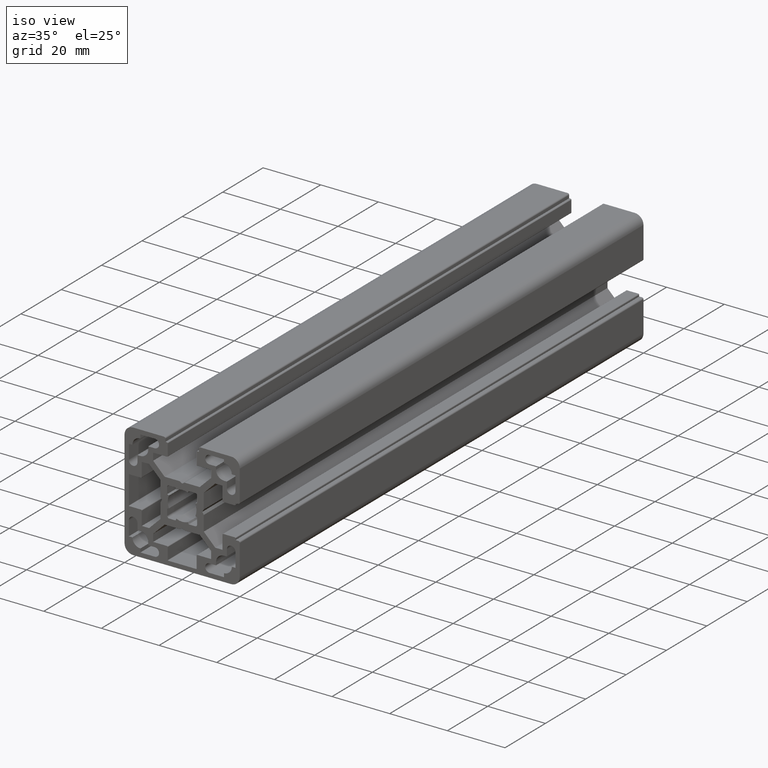
[diagram: clean part render]
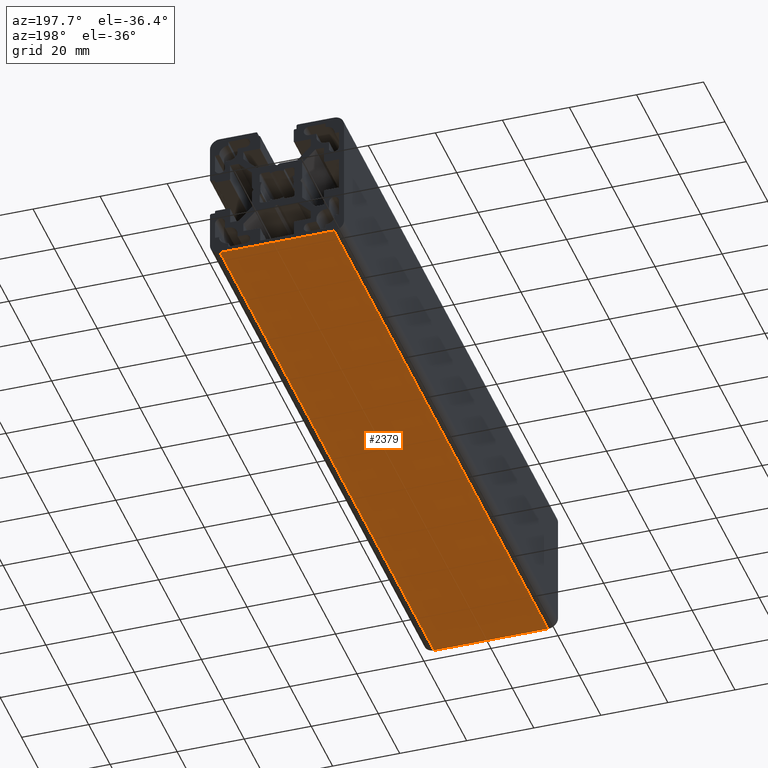
[diagram: tour spotlight — one face highlighted and labeled with its STEP entity id]
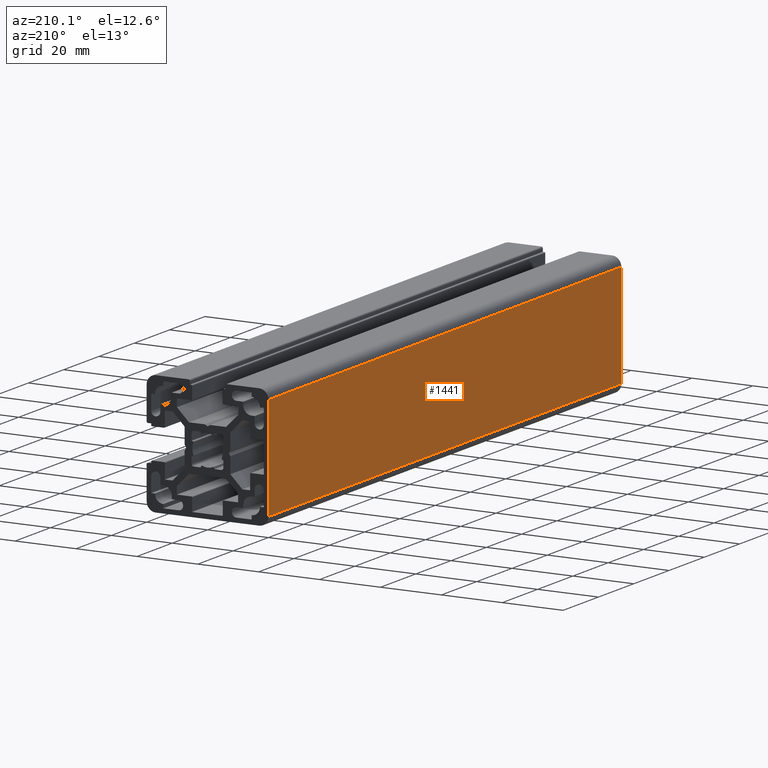
[diagram: tour spotlight — one face highlighted and labeled with its STEP entity id]
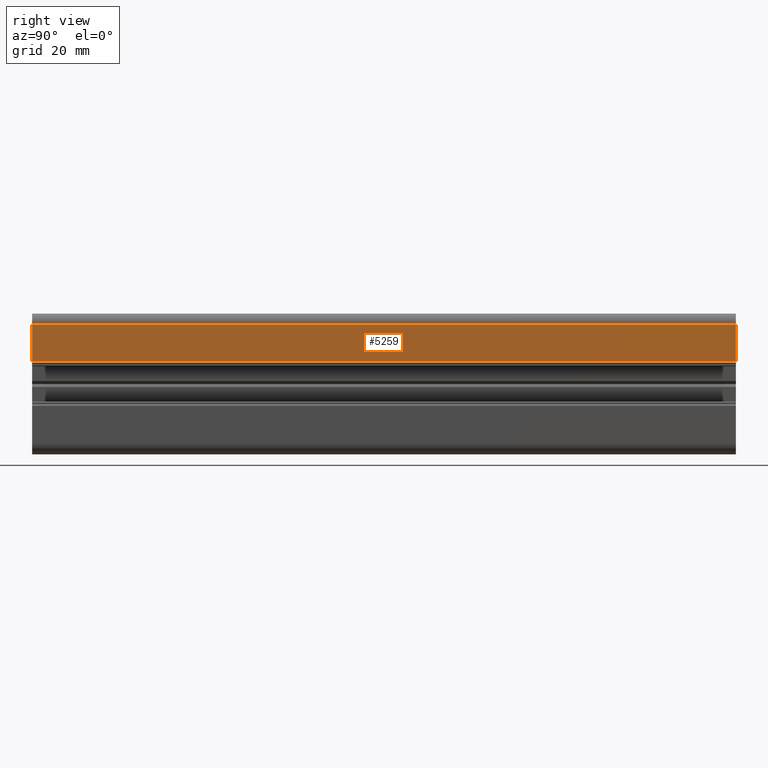
[diagram: tour spotlight — one face highlighted and labeled with its STEP entity id]
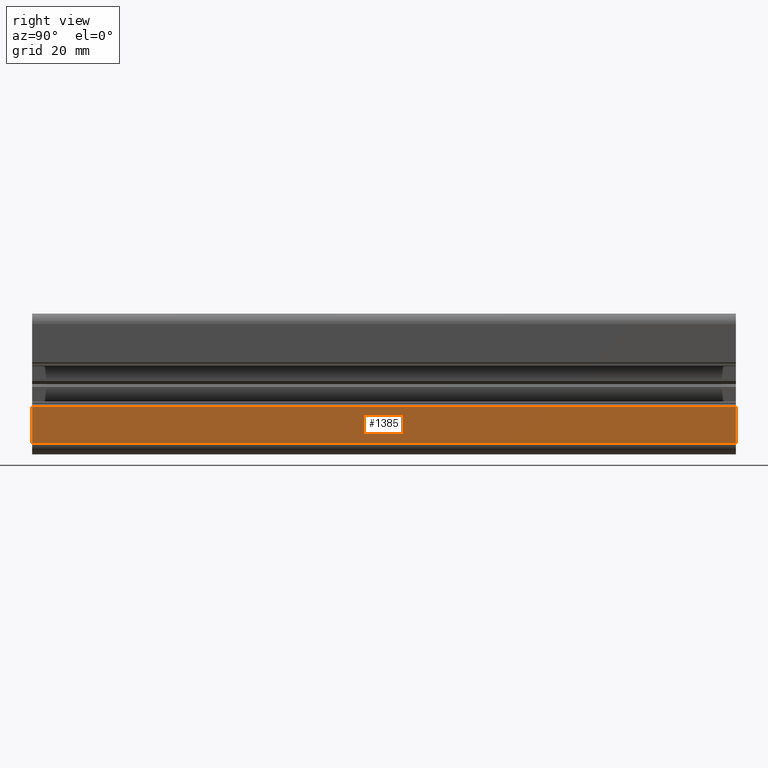
[diagram: tour spotlight — one face highlighted and labeled with its STEP entity id]
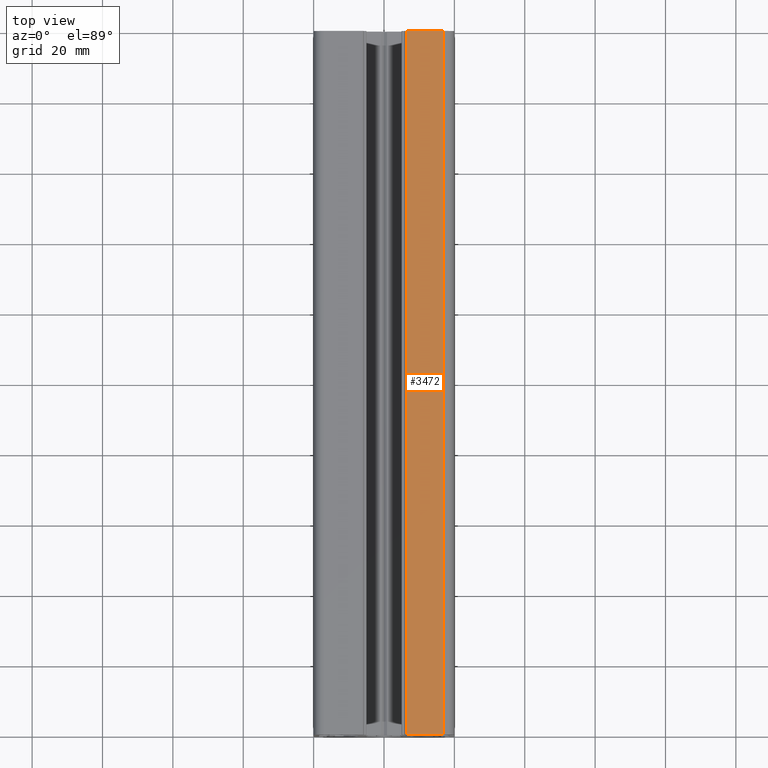
[diagram: tour spotlight — one face highlighted and labeled with its STEP entity id]
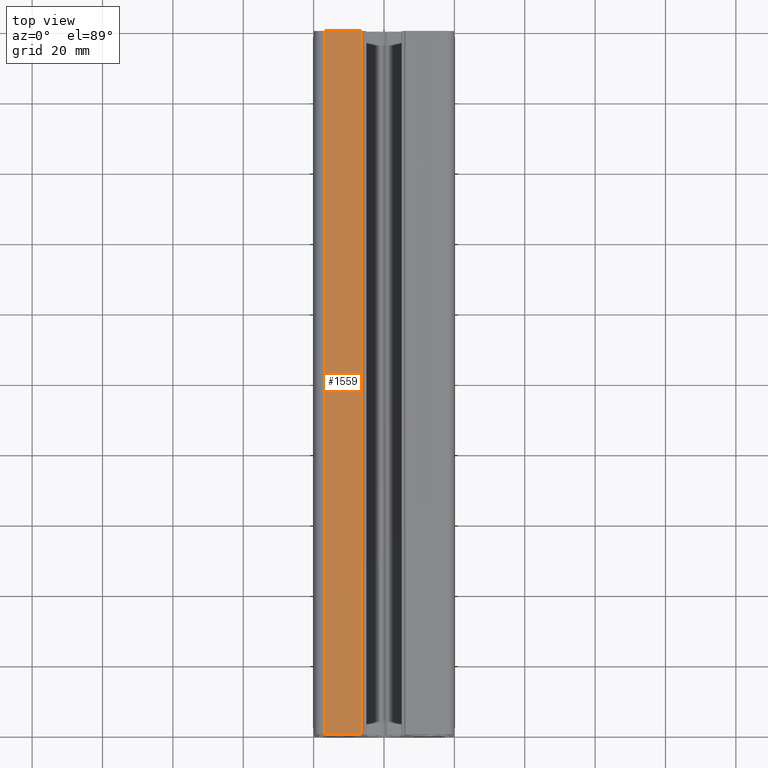
[diagram: tour spotlight — one face highlighted and labeled with its STEP entity id]
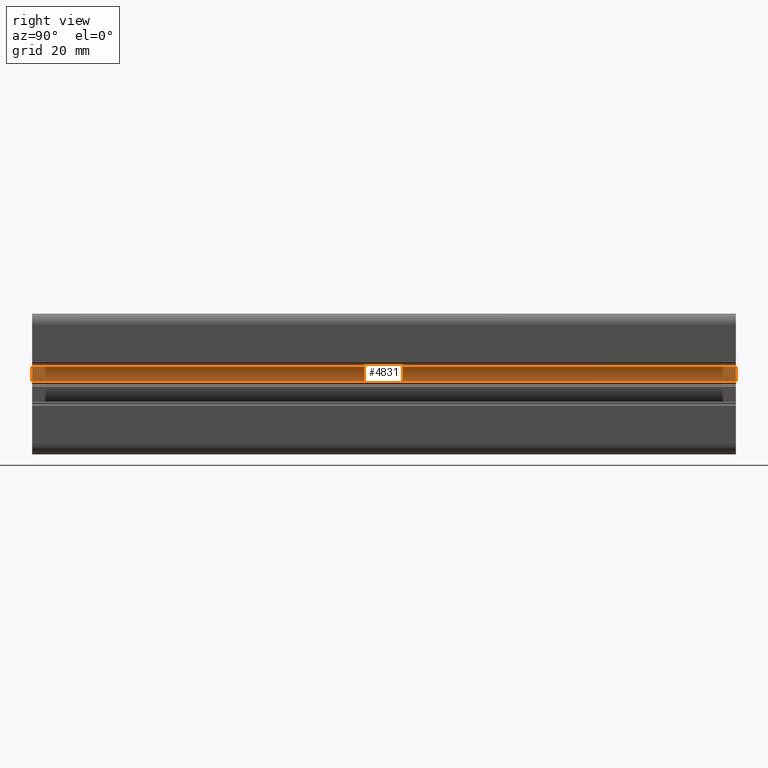
[diagram: tour spotlight — one face highlighted and labeled with its STEP entity id]
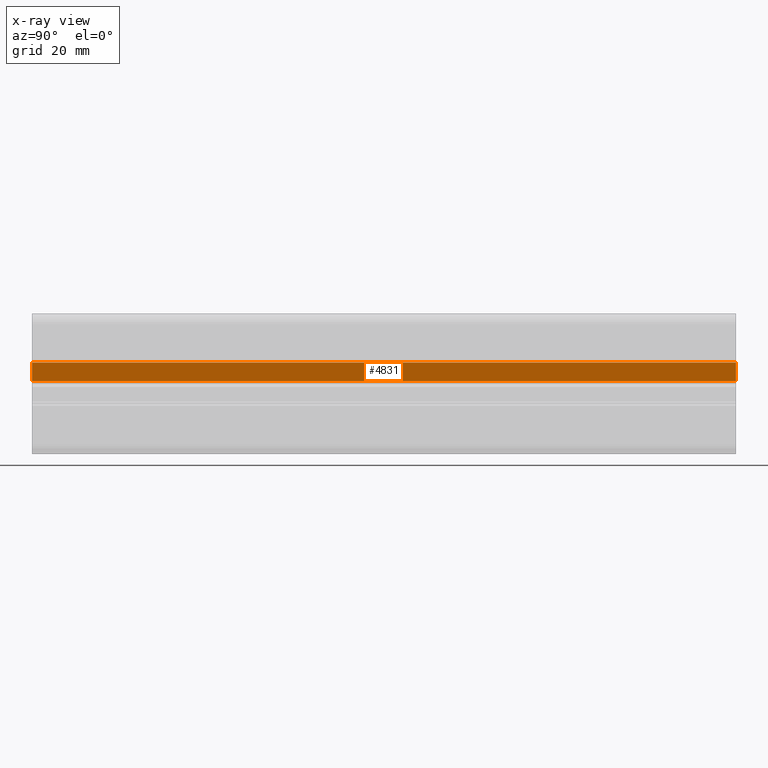
[diagram: x-ray of the same camera — body ghosted, this tour face saturated]
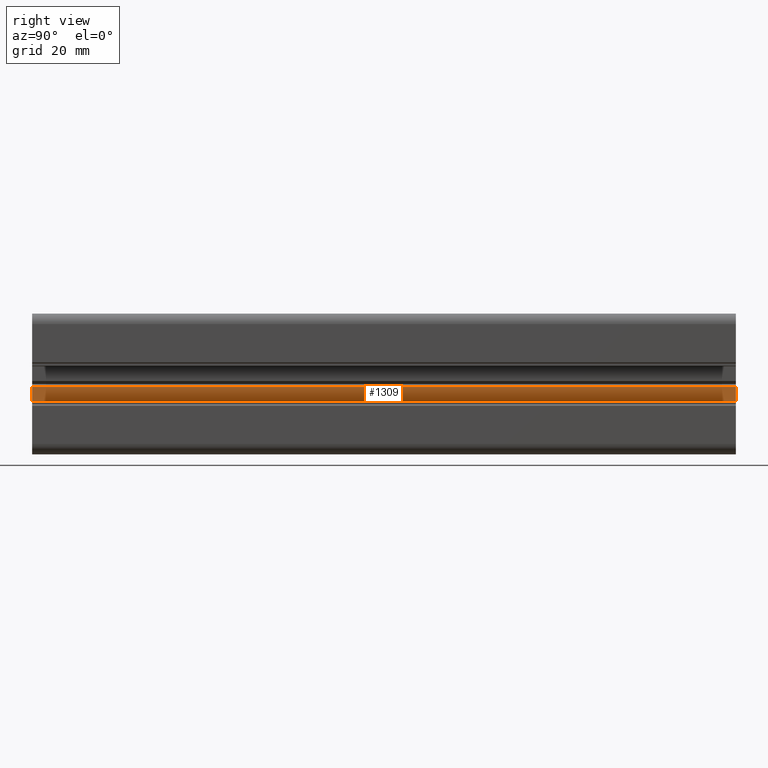
[diagram: tour spotlight — one face highlighted and labeled with its STEP entity id]
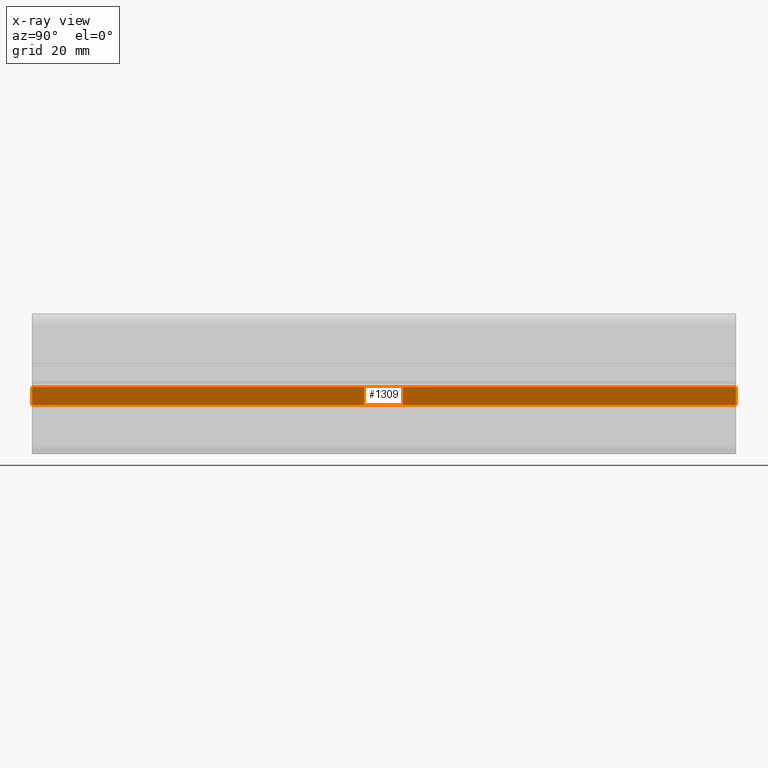
[diagram: x-ray of the same camera — body ghosted, this tour face saturated]
A machine part: a face-by-face anatomy tour. The part has 165 B-rep faces; the first image is the clean iso view, then the 8 largest visible faces are spotlighted one at a time (largest first), each with its STEP entity span.

Face 1 — auxiliary view, entity #2379. In plain terms, the highlighted planar face has unit normal (-0, 0, -1).
Definition (entity closure, byte-faithful):
#91 = DIRECTION ( 'NONE',  ( -0.0000000000000000000, -1.000000000000000000, -0.0000000000000000000 ) ) ;
#104 = VECTOR ( 'NONE', #2369, 1000.000000000000000 ) ;
#146 = CARTESIAN_POINT ( 'NONE',  ( -16.99999999999900200, 0.0000000000000000000, -20.00000000000049000 ) ) ;
#182 = EDGE_CURVE ( 'NONE', #4038, #1059, #1040, .T. ) ;
#447 = CARTESIAN_POINT ( 'NONE',  ( 17.00000000000020300, 200.0000000000000000, -20.00000000000050100 ) ) ;
#455 = VECTOR ( 'NONE', #4737, 1000.000000000000000 ) ;
#646 = EDGE_CURVE ( 'NONE', #1059, #5116, #5097, .T. ) ;
#998 = ORIENTED_EDGE ( 'NONE', *, *, #2866, .T. ) ;
#1040 = LINE ( 'NONE', #4922, #104 ) ;
#1059 = VERTEX_POINT ( 'NONE', #447 ) ;
#1343 = PLANE ( 'NONE',  #4647 ) ;
#1537 = ORIENTED_EDGE ( 'NONE', *, *, #5379, .T. ) ;
#2097 = CARTESIAN_POINT ( 'NONE',  ( 17.00000000000040100, 0.0000000000000000000, -20.00000000000050100 ) ) ;
#2199 = DIRECTION ( 'NONE',  ( 0.0000000000000000000, 1.000000000000000000, 0.0000000000000000000 ) ) ;
#2239 = LINE ( 'NONE', #5241, #3254 ) ;
#2369 = DIRECTION ( 'NONE',  ( 1.000000000000000000, -0.0000000000000000000, -2.612289469706300100E-016 ) ) ;
#2379 = ADVANCED_FACE ( 'NONE', ( #5427 ), #1343, .T. ) ;
#2637 = DIRECTION ( 'NONE',  ( -2.612289469706300100E-016, 0.0000000000000000000, -1.000000000000000000 ) ) ;
#2691 = CARTESIAN_POINT ( 'NONE',  ( -16.99999999999900200, 200.0000000000000000, -20.00000000000049000 ) ) ;
#2738 = EDGE_LOOP ( 'NONE', ( #1537, #998, #3465, #4925 ) ) ;
#2838 = LINE ( 'NONE', #2097, #455 ) ;
#2866 = EDGE_CURVE ( 'NONE', #5052, #4038, #2239, .T. ) ;
#3254 = VECTOR ( 'NONE', #2199, 1000.000000000000000 ) ;
#3465 = ORIENTED_EDGE ( 'NONE', *, *, #182, .T. ) ;
#4038 = VERTEX_POINT ( 'NONE', #2691 ) ;
#4358 = CARTESIAN_POINT ( 'NONE',  ( 17.00000000000040100, 0.0000000000000000000, -20.00000000000050100 ) ) ;
#4477 = CARTESIAN_POINT ( 'NONE',  ( 17.00000000000040100, 0.0000000000000000000, -20.00000000000050100 ) ) ;
#4479 = CARTESIAN_POINT ( 'NONE',  ( 17.00000000000020300, 0.0000000000000000000, -20.00000000000050100 ) ) ;
#4647 = AXIS2_PLACEMENT_3D ( 'NONE', #4358, #2637, #4842 ) ;
#4737 = DIRECTION ( 'NONE',  ( -1.000000000000000000, 0.0000000000000000000, 2.612289469706300100E-016 ) ) ;
#4842 = DIRECTION ( 'NONE',  ( -1.000000000000000000, 0.0000000000000000000, 2.612289469706300100E-016 ) ) ;
#4922 = CARTESIAN_POINT ( 'NONE',  ( 17.00000000000040100, 200.0000000000000000, -20.00000000000050100 ) ) ;
#4925 = ORIENTED_EDGE ( 'NONE', *, *, #646, .T. ) ;
#5052 = VERTEX_POINT ( 'NONE', #146 ) ;
#5097 = LINE ( 'NONE', #4477, #5504 ) ;
#5116 = VERTEX_POINT ( 'NONE', #4479 ) ;
#5241 = CARTESIAN_POINT ( 'NONE',  ( -16.99999999999900500, 0.0000000000000000000, -20.00000000000049000 ) ) ;
#5379 = EDGE_CURVE ( 'NONE', #5116, #5052, #2838, .T. ) ;
#5427 = FACE_OUTER_BOUND ( 'NONE', #2738, .T. ) ;
#5504 = VECTOR ( 'NONE', #91, 1000.000000000000000 ) ;

Face 2 — auxiliary view, entity #1441. In plain terms, the highlighted planar face has unit normal (-1, 0, 0).
Definition (entity closure, byte-faithful):
#84 = DIRECTION ( 'NONE',  ( 2.612289469706340000E-016, 0.0000000000000000000, 1.000000000000000000 ) ) ;
#117 = PLANE ( 'NONE',  #597 ) ;
#207 = DIRECTION ( 'NONE',  ( 0.0000000000000000000, 1.000000000000000000, -0.0000000000000000000 ) ) ;
#374 = CARTESIAN_POINT ( 'NONE',  ( -20.00000000000000400, 0.0000000000000000000, -16.99999999999940000 ) ) ;
#528 = DIRECTION ( 'NONE',  ( -1.000000000000000000, 0.0000000000000000000, 2.612289469706340000E-016 ) ) ;
#597 = AXIS2_PLACEMENT_3D ( 'NONE', #881, #528, #84 ) ;
#690 = VECTOR ( 'NONE', #3561, 1000.000000000000000 ) ;
#743 = EDGE_CURVE ( 'NONE', #2663, #3159, #4974, .T. ) ;
#762 = VECTOR ( 'NONE', #207, 1000.000000000000000 ) ;
#881 = CARTESIAN_POINT ( 'NONE',  ( -20.00000000000000000, 0.0000000000000000000, -16.99999999999940000 ) ) ;
#1441 = ADVANCED_FACE ( 'NONE', ( #2523 ), #117, .T. ) ;
#1445 = EDGE_CURVE ( 'NONE', #2865, #2663, #4832, .T. ) ;
#1707 = DIRECTION ( 'NONE',  ( 0.0000000000000000000, -0.0000000000000000000, 1.000000000000000000 ) ) ;
#1788 = VERTEX_POINT ( 'NONE', #2110 ) ;
#2028 = CARTESIAN_POINT ( 'NONE',  ( -19.99999999999998900, 0.0000000000000000000, 16.99999999999940000 ) ) ;
#2110 = CARTESIAN_POINT ( 'NONE',  ( -20.00000000000000400, 200.0000000000000000, -16.99999999999940000 ) ) ;
#2395 = ORIENTED_EDGE ( 'NONE', *, *, #743, .T. ) ;
#2523 = FACE_OUTER_BOUND ( 'NONE', #3349, .T. ) ;
#2554 = DIRECTION ( 'NONE',  ( 0.0000000000000000000, 1.000000000000000000, 0.0000000000000000000 ) ) ;
#2647 = CARTESIAN_POINT ( 'NONE',  ( -20.00000000000000000, 0.0000000000000000000, -16.99999999999940000 ) ) ;
#2651 = CARTESIAN_POINT ( 'NONE',  ( -20.00000000000000000, 200.0000000000000000, -1.776356839400250000E-013 ) ) ;
#2663 = VERTEX_POINT ( 'NONE', #2028 ) ;
#2772 = VECTOR ( 'NONE', #2554, 1000.000000000000000 ) ;
#2865 = VERTEX_POINT ( 'NONE', #4752 ) ;
#3159 = VERTEX_POINT ( 'NONE', #4196 ) ;
#3349 = EDGE_LOOP ( 'NONE', ( #4301, #2395, #4921, #3708 ) ) ;
#3561 = DIRECTION ( 'NONE',  ( 2.612289469706340000E-016, 0.0000000000000000000, 1.000000000000000000 ) ) ;
#3677 = VECTOR ( 'NONE', #1707, 1000.000000000000000 ) ;
#3708 = ORIENTED_EDGE ( 'NONE', *, *, #5391, .F. ) ;
#3897 = EDGE_CURVE ( 'NONE', #1788, #3159, #4754, .T. ) ;
#4079 = CARTESIAN_POINT ( 'NONE',  ( -19.99999999999998900, 0.0000000000000000000, 16.99999999999940000 ) ) ;
#4196 = CARTESIAN_POINT ( 'NONE',  ( -19.99999999999999600, 200.0000000000000000, 16.99999999999940000 ) ) ;
#4301 = ORIENTED_EDGE ( 'NONE', *, *, #1445, .T. ) ;
#4671 = LINE ( 'NONE', #374, #2772 ) ;
#4752 = CARTESIAN_POINT ( 'NONE',  ( -20.00000000000000400, 0.0000000000000000000, -16.99999999999940000 ) ) ;
#4754 = LINE ( 'NONE', #2651, #3677 ) ;
#4832 = LINE ( 'NONE', #2647, #690 ) ;
#4921 = ORIENTED_EDGE ( 'NONE', *, *, #3897, .F. ) ;
#4974 = LINE ( 'NONE', #4079, #762 ) ;
#5391 = EDGE_CURVE ( 'NONE', #2865, #1788, #4671, .T. ) ;

Face 3 — right view, entity #5259. In plain terms, the highlighted planar face has unit normal (1, 0, -0).
Definition (entity closure, byte-faithful):
#650 = DIRECTION ( 'NONE',  ( -4.689899476515129800E-014, 0.0000000000000000000, -1.000000000000000000 ) ) ;
#763 = EDGE_CURVE ( 'NONE', #3786, #4274, #5234, .T. ) ;
#781 = DIRECTION ( 'NONE',  ( 0.0000000000000000000, 1.000000000000000000, 0.0000000000000000000 ) ) ;
#887 = VECTOR ( 'NONE', #781, 1000.000000000000000 ) ;
#1045 = ORIENTED_EDGE ( 'NONE', *, *, #5315, .F. ) ;
#1207 = DIRECTION ( 'NONE',  ( -4.689899476515129800E-014, 0.0000000000000000000, -1.000000000000000000 ) ) ;
#1544 = CARTESIAN_POINT ( 'NONE',  ( 20.00000000000000000, 0.0000000000000000000, 16.99999999999848300 ) ) ;
#1564 = DIRECTION ( 'NONE',  ( 1.000000000000000000, 0.0000000000000000000, -4.689899476515129800E-014 ) ) ;
#1679 = EDGE_CURVE ( 'NONE', #2309, #2363, #2180, .T. ) ;
#1704 = ORIENTED_EDGE ( 'NONE', *, *, #1679, .T. ) ;
#1903 = VECTOR ( 'NONE', #650, 1000.000000000000000 ) ;
#1924 = CARTESIAN_POINT ( 'NONE',  ( 20.00000000000000000, 0.0000000000000000000, 16.99999999999850100 ) ) ;
#2063 = DIRECTION ( 'NONE',  ( -0.0000000000000000000, 0.0000000000000000000, -1.000000000000000000 ) ) ;
#2180 = LINE ( 'NONE', #3382, #887 ) ;
#2181 = AXIS2_PLACEMENT_3D ( 'NONE', #2451, #1564, #1207 ) ;
#2185 = CARTESIAN_POINT ( 'NONE',  ( 19.99999999999949900, 0.0000000000000000000, 6.299966669999427900 ) ) ;
#2309 = VERTEX_POINT ( 'NONE', #2185 ) ;
#2363 = VERTEX_POINT ( 'NONE', #5286 ) ;
#2451 = CARTESIAN_POINT ( 'NONE',  ( 20.00000000000000000, 0.0000000000000000000, 16.99999999999850100 ) ) ;
#2574 = EDGE_CURVE ( 'NONE', #4274, #2309, #3039, .T. ) ;
#3039 = LINE ( 'NONE', #4519, #1903 ) ;
#3382 = CARTESIAN_POINT ( 'NONE',  ( 19.99999999999949900, 0.0000000000000000000, 6.299966669999440300 ) ) ;
#3642 = ORIENTED_EDGE ( 'NONE', *, *, #2574, .T. ) ;
#3728 = VECTOR ( 'NONE', #2063, 1000.000000000000000 ) ;
#3766 = ORIENTED_EDGE ( 'NONE', *, *, #763, .T. ) ;
#3767 = EDGE_LOOP ( 'NONE', ( #3642, #1704, #1045, #3766 ) ) ;
#3786 = VERTEX_POINT ( 'NONE', #3847 ) ;
#3847 = CARTESIAN_POINT ( 'NONE',  ( 20.00000000000000000, 200.0000000000000000, 16.99999999999855000 ) ) ;
#4098 = VECTOR ( 'NONE', #4960, 1000.000000000000000 ) ;
#4274 = VERTEX_POINT ( 'NONE', #1544 ) ;
#4519 = CARTESIAN_POINT ( 'NONE',  ( 20.00000000000000000, 0.0000000000000000000, 16.99999999999850100 ) ) ;
#4666 = PLANE ( 'NONE',  #2181 ) ;
#4735 = LINE ( 'NONE', #5060, #3728 ) ;
#4949 = FACE_OUTER_BOUND ( 'NONE', #3767, .T. ) ;
#4960 = DIRECTION ( 'NONE',  ( -0.0000000000000000000, -1.000000000000000000, -0.0000000000000000000 ) ) ;
#5060 = CARTESIAN_POINT ( 'NONE',  ( 20.00000000000000000, 200.0000000000000000, -1.776356839400250000E-013 ) ) ;
#5234 = LINE ( 'NONE', #1924, #4098 ) ;
#5259 = ADVANCED_FACE ( 'NONE', ( #4949 ), #4666, .T. ) ;
#5286 = CARTESIAN_POINT ( 'NONE',  ( 19.99999999999974800, 200.0000000000000000, 6.299966669999440300 ) ) ;
#5315 = EDGE_CURVE ( 'NONE', #3786, #2363, #4735, .T. ) ;

Face 4 — right view, entity #1385. In plain terms, the highlighted planar face has unit normal (1, 0, -0).
Definition (entity closure, byte-faithful):
#7 = PLANE ( 'NONE',  #1458 ) ;
#71 = DIRECTION ( 'NONE',  ( -2.075189687717180100E-016, 0.0000000000000000000, -1.000000000000000000 ) ) ;
#232 = VERTEX_POINT ( 'NONE', #276 ) ;
#258 = ORIENTED_EDGE ( 'NONE', *, *, #5076, .T. ) ;
#276 = CARTESIAN_POINT ( 'NONE',  ( 20.00000000000006000, 0.0000000000000000000, -17.00000000000040100 ) ) ;
#611 = CARTESIAN_POINT ( 'NONE',  ( 20.00000000000006000, 200.0000000000000000, -17.00000000000040100 ) ) ;
#813 = CARTESIAN_POINT ( 'NONE',  ( 20.00000000000000000, 200.0000000000000000, -1.776356839400250000E-013 ) ) ;
#818 = EDGE_LOOP ( 'NONE', ( #3566, #1191, #977, #258 ) ) ;
#836 = DIRECTION ( 'NONE',  ( -0.0000000000000000000, 0.0000000000000000000, -1.000000000000000000 ) ) ;
#860 = EDGE_CURVE ( 'NONE', #2963, #232, #2328, .T. ) ;
#893 = FACE_OUTER_BOUND ( 'NONE', #818, .T. ) ;
#977 = ORIENTED_EDGE ( 'NONE', *, *, #1237, .F. ) ;
#1191 = ORIENTED_EDGE ( 'NONE', *, *, #4344, .F. ) ;
#1237 = EDGE_CURVE ( 'NONE', #4287, #2555, #3613, .T. ) ;
#1385 = ADVANCED_FACE ( 'NONE', ( #893 ), #7, .T. ) ;
#1458 = AXIS2_PLACEMENT_3D ( 'NONE', #2175, #2608, #71 ) ;
#1558 = CARTESIAN_POINT ( 'NONE',  ( 20.00000000000000000, 200.0000000000000000, -6.300033329999630300 ) ) ;
#1908 = LINE ( 'NONE', #2908, #4331 ) ;
#1921 = VECTOR ( 'NONE', #3294, 1000.000000000000000 ) ;
#2175 = CARTESIAN_POINT ( 'NONE',  ( 20.00000000000000000, 0.0000000000000000000, -6.300033329999630300 ) ) ;
#2270 = DIRECTION ( 'NONE',  ( -0.0000000000000000000, -1.000000000000000000, -0.0000000000000000000 ) ) ;
#2328 = LINE ( 'NONE', #4717, #1921 ) ;
#2555 = VERTEX_POINT ( 'NONE', #611 ) ;
#2608 = DIRECTION ( 'NONE',  ( 1.000000000000000000, 0.0000000000000000000, -2.075189687717180100E-016 ) ) ;
#2908 = CARTESIAN_POINT ( 'NONE',  ( 20.00000000000012100, 0.0000000000000000000, -17.00000000000040100 ) ) ;
#2963 = VERTEX_POINT ( 'NONE', #4834 ) ;
#3294 = DIRECTION ( 'NONE',  ( -2.075189687717180100E-016, 0.0000000000000000000, -1.000000000000000000 ) ) ;
#3345 = DIRECTION ( 'NONE',  ( -0.0000000000000000000, -1.000000000000000000, -0.0000000000000000000 ) ) ;
#3566 = ORIENTED_EDGE ( 'NONE', *, *, #860, .T. ) ;
#3613 = LINE ( 'NONE', #813, #5433 ) ;
#4287 = VERTEX_POINT ( 'NONE', #1558 ) ;
#4323 = LINE ( 'NONE', #5313, #5276 ) ;
#4331 = VECTOR ( 'NONE', #3345, 1000.000000000000000 ) ;
#4344 = EDGE_CURVE ( 'NONE', #2555, #232, #1908, .T. ) ;
#4717 = CARTESIAN_POINT ( 'NONE',  ( 20.00000000000000000, 0.0000000000000000000, -6.300033329999630300 ) ) ;
#4834 = CARTESIAN_POINT ( 'NONE',  ( 20.00000000000000000, 0.0000000000000000000, -6.300033329999630300 ) ) ;
#5076 = EDGE_CURVE ( 'NONE', #4287, #2963, #4323, .T. ) ;
#5276 = VECTOR ( 'NONE', #2270, 1000.000000000000000 ) ;
#5313 = CARTESIAN_POINT ( 'NONE',  ( 20.00000000000000000, 0.0000000000000000000, -6.300033329999630300 ) ) ;
#5433 = VECTOR ( 'NONE', #836, 1000.000000000000000 ) ;

Face 5 — top view, entity #3472. In plain terms, the highlighted planar face has unit normal (0, -0, 1).
Definition (entity closure, byte-faithful):
#69 = LINE ( 'NONE', #493, #3850 ) ;
#493 = CARTESIAN_POINT ( 'NONE',  ( 6.300033330000069900, 0.0000000000000000000, 19.99999999999949900 ) ) ;
#988 = ORIENTED_EDGE ( 'NONE', *, *, #5555, .T. ) ;
#1273 = LINE ( 'NONE', #5457, #5018 ) ;
#1497 = CARTESIAN_POINT ( 'NONE',  ( 6.300033330000069900, 0.0000000000000000000, 19.99999999999949900 ) ) ;
#1963 = VERTEX_POINT ( 'NONE', #2761 ) ;
#2045 = EDGE_CURVE ( 'NONE', #5050, #1963, #5088, .T. ) ;
#2058 = CARTESIAN_POINT ( 'NONE',  ( 6.300033330000069900, 0.0000000000000000000, 19.99999999999949900 ) ) ;
#2617 = EDGE_CURVE ( 'NONE', #3290, #5050, #1273, .T. ) ;
#2740 = PLANE ( 'NONE',  #4267 ) ;
#2761 = CARTESIAN_POINT ( 'NONE',  ( 16.99999999999900200, 0.0000000000000000000, 19.99999999999954900 ) ) ;
#2852 = VECTOR ( 'NONE', #3701, 1000.000000000000000 ) ;
#3063 = ORIENTED_EDGE ( 'NONE', *, *, #4212, .T. ) ;
#3116 = FACE_OUTER_BOUND ( 'NONE', #4232, .T. ) ;
#3186 = CARTESIAN_POINT ( 'NONE',  ( 16.99999999999900200, 200.0000000000000000, 19.99999999999955200 ) ) ;
#3290 = VERTEX_POINT ( 'NONE', #4677 ) ;
#3472 = ADVANCED_FACE ( 'NONE', ( #3116 ), #2740, .T. ) ;
#3676 = CARTESIAN_POINT ( 'NONE',  ( 16.99999999999900200, 0.0000000000000000000, 19.99999999999960200 ) ) ;
#3701 = DIRECTION ( 'NONE',  ( -0.0000000000000000000, -1.000000000000000000, -0.0000000000000000000 ) ) ;
#3850 = VECTOR ( 'NONE', #5282, 1000.000000000000000 ) ;
#3852 = ORIENTED_EDGE ( 'NONE', *, *, #2045, .F. ) ;
#4154 = DIRECTION ( 'NONE',  ( 1.000000000000000000, 0.0000000000000000000, -0.0000000000000000000 ) ) ;
#4212 = EDGE_CURVE ( 'NONE', #3290, #4322, #5429, .T. ) ;
#4232 = EDGE_LOOP ( 'NONE', ( #988, #3852, #4542, #3063 ) ) ;
#4267 = AXIS2_PLACEMENT_3D ( 'NONE', #1497, #4942, #4544 ) ;
#4322 = VERTEX_POINT ( 'NONE', #2058 ) ;
#4333 = VECTOR ( 'NONE', #4967, 1000.000000000000000 ) ;
#4542 = ORIENTED_EDGE ( 'NONE', *, *, #2617, .F. ) ;
#4544 = DIRECTION ( 'NONE',  ( 1.000000000000000000, 0.0000000000000000000, -2.075189687717540000E-016 ) ) ;
#4677 = CARTESIAN_POINT ( 'NONE',  ( 6.300033330000069900, 200.0000000000000000, 19.99999999999949900 ) ) ;
#4942 = DIRECTION ( 'NONE',  ( 2.075189687717540000E-016, -0.0000000000000000000, 1.000000000000000000 ) ) ;
#4967 = DIRECTION ( 'NONE',  ( -0.0000000000000000000, -1.000000000000000000, -0.0000000000000000000 ) ) ;
#5018 = VECTOR ( 'NONE', #4154, 1000.000000000000000 ) ;
#5050 = VERTEX_POINT ( 'NONE', #3186 ) ;
#5088 = LINE ( 'NONE', #3676, #4333 ) ;
#5282 = DIRECTION ( 'NONE',  ( 1.000000000000000000, 0.0000000000000000000, -2.075189687717540000E-016 ) ) ;
#5420 = CARTESIAN_POINT ( 'NONE',  ( 6.300033330000069900, 0.0000000000000000000, 19.99999999999949900 ) ) ;
#5429 = LINE ( 'NONE', #5420, #2852 ) ;
#5457 = CARTESIAN_POINT ( 'NONE',  ( 2.664535259100380100E-014, 200.0000000000000000, 19.99999999999949900 ) ) ;
#5555 = EDGE_CURVE ( 'NONE', #4322, #1963, #69, .T. ) ;

Face 6 — top view, entity #1559. In plain terms, the highlighted planar face has unit normal (-0, 0, 1).
Definition (entity closure, byte-faithful):
#140 = VECTOR ( 'NONE', #3550, 1000.000000000000000 ) ;
#416 = FACE_OUTER_BOUND ( 'NONE', #776, .T. ) ;
#601 = VERTEX_POINT ( 'NONE', #5310 ) ;
#776 = EDGE_LOOP ( 'NONE', ( #2857, #2676, #2696, #3012 ) ) ;
#834 = EDGE_CURVE ( 'NONE', #1798, #5188, #2923, .T. ) ;
#1427 = LINE ( 'NONE', #2354, #3605 ) ;
#1428 = PLANE ( 'NONE',  #4481 ) ;
#1559 = ADVANCED_FACE ( 'NONE', ( #416 ), #1428, .T. ) ;
#1615 = EDGE_CURVE ( 'NONE', #1860, #1798, #1427, .T. ) ;
#1798 = VERTEX_POINT ( 'NONE', #3050 ) ;
#1860 = VERTEX_POINT ( 'NONE', #2213 ) ;
#2213 = CARTESIAN_POINT ( 'NONE',  ( -17.00000000000000000, 200.0000000000000000, 19.99999999999949900 ) ) ;
#2337 = DIRECTION ( 'NONE',  ( -0.0000000000000000000, -1.000000000000000000, 0.0000000000000000000 ) ) ;
#2354 = CARTESIAN_POINT ( 'NONE',  ( -17.00000000000000000, 0.0000000000000000000, 19.99999999999949900 ) ) ;
#2676 = ORIENTED_EDGE ( 'NONE', *, *, #5062, .T. ) ;
#2696 = ORIENTED_EDGE ( 'NONE', *, *, #3651, .F. ) ;
#2765 = DIRECTION ( 'NONE',  ( 1.000000000000000000, 0.0000000000000000000, 4.627644173729269800E-014 ) ) ;
#2857 = ORIENTED_EDGE ( 'NONE', *, *, #834, .T. ) ;
#2923 = LINE ( 'NONE', #3703, #4216 ) ;
#3012 = ORIENTED_EDGE ( 'NONE', *, *, #1615, .T. ) ;
#3050 = CARTESIAN_POINT ( 'NONE',  ( -17.00000000000007100, 0.0000000000000000000, 19.99999999999949900 ) ) ;
#3378 = LINE ( 'NONE', #5266, #140 ) ;
#3550 = DIRECTION ( 'NONE',  ( 0.0000000000000000000, 1.000000000000000000, -0.0000000000000000000 ) ) ;
#3605 = VECTOR ( 'NONE', #2337, 1000.000000000000000 ) ;
#3651 = EDGE_CURVE ( 'NONE', #1860, #601, #5566, .T. ) ;
#3703 = CARTESIAN_POINT ( 'NONE',  ( -17.00000000000000000, 0.0000000000000000000, 19.99999999999949900 ) ) ;
#3777 = CARTESIAN_POINT ( 'NONE',  ( 2.664535259100380100E-014, 200.0000000000000000, 19.99999999999949900 ) ) ;
#4014 = VECTOR ( 'NONE', #5014, 1000.000000000000000 ) ;
#4136 = DIRECTION ( 'NONE',  ( 1.000000000000000000, 0.0000000000000000000, 4.627644173729269800E-014 ) ) ;
#4216 = VECTOR ( 'NONE', #4136, 1000.000000000000000 ) ;
#4472 = CARTESIAN_POINT ( 'NONE',  ( -17.00000000000000000, 0.0000000000000000000, 19.99999999999949900 ) ) ;
#4481 = AXIS2_PLACEMENT_3D ( 'NONE', #4472, #4970, #2765 ) ;
#4543 = CARTESIAN_POINT ( 'NONE',  ( -6.299966670000332100, 0.0000000000000000000, 19.99999999999999600 ) ) ;
#4970 = DIRECTION ( 'NONE',  ( -4.627644173729269800E-014, 0.0000000000000000000, 1.000000000000000000 ) ) ;
#5014 = DIRECTION ( 'NONE',  ( 1.000000000000000000, 0.0000000000000000000, -0.0000000000000000000 ) ) ;
#5062 = EDGE_CURVE ( 'NONE', #5188, #601, #3378, .T. ) ;
#5188 = VERTEX_POINT ( 'NONE', #4543 ) ;
#5266 = CARTESIAN_POINT ( 'NONE',  ( -6.299966670000319600, 0.0000000000000000000, 19.99999999999999600 ) ) ;
#5310 = CARTESIAN_POINT ( 'NONE',  ( -6.299966670000319600, 200.0000000000000000, 19.99999999999974800 ) ) ;
#5566 = LINE ( 'NONE', #3777, #4014 ) ;

Face 7 — right view, entity #4831. An x-ray twin of the same camera follows (body ghosted, this face saturated) — the face is partly hidden behind the body. In plain terms, the highlighted planar face has unit normal (1, 0, -0).
Definition (entity closure, byte-faithful):
#68 = ORIENTED_EDGE ( 'NONE', *, *, #204, .T. ) ;
#86 = CARTESIAN_POINT ( 'NONE',  ( 7.499889978929809700, 200.0000000000000000, 6.085676416529569400 ) ) ;
#127 = VERTEX_POINT ( 'NONE', #1967 ) ;
#183 = CARTESIAN_POINT ( 'NONE',  ( 7.499889978929809700, 200.0000000000000000, 0.8660254037833308200 ) ) ;
#204 = EDGE_CURVE ( 'NONE', #1038, #1300, #5232, .T. ) ;
#355 = LINE ( 'NONE', #2953, #2805 ) ;
#368 = EDGE_CURVE ( 'NONE', #1038, #787, #355, .T. ) ;
#554 = ORIENTED_EDGE ( 'NONE', *, *, #368, .F. ) ;
#600 = EDGE_CURVE ( 'NONE', #127, #787, #820, .T. ) ;
#659 = EDGE_LOOP ( 'NONE', ( #4663, #3278, #554, #68 ) ) ;
#787 = VERTEX_POINT ( 'NONE', #183 ) ;
#809 = CARTESIAN_POINT ( 'NONE',  ( 7.499889978929809700, 0.0000000000000000000, 6.085676416529570300 ) ) ;
#820 = LINE ( 'NONE', #3182, #2929 ) ;
#1038 = VERTEX_POINT ( 'NONE', #86 ) ;
#1073 = CARTESIAN_POINT ( 'NONE',  ( 7.499889978929809700, 0.0000000000000000000, 6.085676416529570300 ) ) ;
#1300 = VERTEX_POINT ( 'NONE', #1886 ) ;
#1377 = DIRECTION ( 'NONE',  ( -2.127006234543310100E-016, 0.0000000000000000000, -1.000000000000000000 ) ) ;
#1692 = DIRECTION ( 'NONE',  ( 1.000000000000000000, 0.0000000000000000000, -2.127006234543310100E-016 ) ) ;
#1886 = CARTESIAN_POINT ( 'NONE',  ( 7.499889978929809700, 0.0000000000000000000, 6.085676416529571100 ) ) ;
#1967 = CARTESIAN_POINT ( 'NONE',  ( 7.499889978929808800, 0.0000000000000000000, 0.8660254037833293700 ) ) ;
#1992 = VECTOR ( 'NONE', #1377, 1000.000000000000000 ) ;
#2268 = DIRECTION ( 'NONE',  ( 0.0000000000000000000, 1.000000000000000000, 0.0000000000000000000 ) ) ;
#2298 = AXIS2_PLACEMENT_3D ( 'NONE', #809, #1692, #3833 ) ;
#2334 = LINE ( 'NONE', #3150, #1992 ) ;
#2805 = VECTOR ( 'NONE', #4684, 1000.000000000000000 ) ;
#2929 = VECTOR ( 'NONE', #2268, 1000.000000000000000 ) ;
#2953 = CARTESIAN_POINT ( 'NONE',  ( 7.499889978929809700, 200.0000000000000000, -1.776356839400250000E-013 ) ) ;
#3014 = EDGE_CURVE ( 'NONE', #1300, #127, #2334, .T. ) ;
#3150 = CARTESIAN_POINT ( 'NONE',  ( 7.499889978929809700, 0.0000000000000000000, 6.085676416529570300 ) ) ;
#3182 = CARTESIAN_POINT ( 'NONE',  ( 7.499889978929808800, 0.0000000000000000000, 0.8660254037833308200 ) ) ;
#3255 = FACE_OUTER_BOUND ( 'NONE', #659, .T. ) ;
#3278 = ORIENTED_EDGE ( 'NONE', *, *, #600, .T. ) ;
#3729 = DIRECTION ( 'NONE',  ( -0.0000000000000000000, -1.000000000000000000, -0.0000000000000000000 ) ) ;
#3820 = PLANE ( 'NONE',  #2298 ) ;
#3833 = DIRECTION ( 'NONE',  ( -2.127006234543310100E-016, 0.0000000000000000000, -1.000000000000000000 ) ) ;
#4096 = VECTOR ( 'NONE', #3729, 1000.000000000000000 ) ;
#4663 = ORIENTED_EDGE ( 'NONE', *, *, #3014, .T. ) ;
#4684 = DIRECTION ( 'NONE',  ( -0.0000000000000000000, 0.0000000000000000000, -1.000000000000000000 ) ) ;
#4831 = ADVANCED_FACE ( 'NONE', ( #3255 ), #3820, .T. ) ;
#5232 = LINE ( 'NONE', #1073, #4096 ) ;

Face 8 — right view, entity #1309. An x-ray twin of the same camera follows (body ghosted, this face saturated) — the face is partly hidden behind the body. In plain terms, the highlighted planar face has unit normal (1, 0, -0).
Definition (entity closure, byte-faithful):
#24 = CARTESIAN_POINT ( 'NONE',  ( 7.499889978929809700, 0.0000000000000000000, -0.8660254037851107300 ) ) ;
#60 = VERTEX_POINT ( 'NONE', #2274 ) ;
#96 = EDGE_LOOP ( 'NONE', ( #1070, #5007, #5599, #500 ) ) ;
#212 = VECTOR ( 'NONE', #3160, 1000.000000000000000 ) ;
#500 = ORIENTED_EDGE ( 'NONE', *, *, #5593, .T. ) ;
#584 = CARTESIAN_POINT ( 'NONE',  ( 7.499889978929808800, 0.0000000000000000000, -6.085676416530459300 ) ) ;
#610 = LINE ( 'NONE', #5518, #2640 ) ;
#868 = LINE ( 'NONE', #991, #212 ) ;
#991 = CARTESIAN_POINT ( 'NONE',  ( 7.499889978929809700, 0.0000000000000000000, -0.8660254037851099500 ) ) ;
#1070 = ORIENTED_EDGE ( 'NONE', *, *, #5091, .T. ) ;
#1079 = VERTEX_POINT ( 'NONE', #584 ) ;
#1309 = ADVANCED_FACE ( 'NONE', ( #2855 ), #2851, .T. ) ;
#1639 = DIRECTION ( 'NONE',  ( -0.0000000000000000000, -1.000000000000000000, -0.0000000000000000000 ) ) ;
#1752 = CARTESIAN_POINT ( 'NONE',  ( 7.499889978929809700, 0.0000000000000000000, -0.8660254037851110600 ) ) ;
#1782 = EDGE_CURVE ( 'NONE', #2859, #60, #4083, .T. ) ;
#1806 = DIRECTION ( 'NONE',  ( -0.0000000000000000000, 0.0000000000000000000, -1.000000000000000000 ) ) ;
#2017 = DIRECTION ( 'NONE',  ( 1.000000000000000000, 0.0000000000000000000, -2.127006234543670000E-016 ) ) ;
#2274 = CARTESIAN_POINT ( 'NONE',  ( 7.499889978929809700, 200.0000000000000000, -6.085676416530460200 ) ) ;
#2371 = LINE ( 'NONE', #1752, #4127 ) ;
#2640 = VECTOR ( 'NONE', #1639, 1000.000000000000000 ) ;
#2851 = PLANE ( 'NONE',  #5236 ) ;
#2855 = FACE_OUTER_BOUND ( 'NONE', #96, .T. ) ;
#2859 = VERTEX_POINT ( 'NONE', #4791 ) ;
#3160 = DIRECTION ( 'NONE',  ( -2.127006234543670000E-016, 0.0000000000000000000, -1.000000000000000000 ) ) ;
#3288 = DIRECTION ( 'NONE',  ( -2.127006234543670000E-016, 0.0000000000000000000, -1.000000000000000000 ) ) ;
#3414 = VERTEX_POINT ( 'NONE', #24 ) ;
#3872 = VECTOR ( 'NONE', #1806, 1000.000000000000000 ) ;
#4083 = LINE ( 'NONE', #4785, #3872 ) ;
#4127 = VECTOR ( 'NONE', #4774, 1000.000000000000000 ) ;
#4618 = CARTESIAN_POINT ( 'NONE',  ( 7.499889978929809700, 0.0000000000000000000, -0.8660254037851099500 ) ) ;
#4770 = EDGE_CURVE ( 'NONE', #60, #1079, #610, .T. ) ;
#4774 = DIRECTION ( 'NONE',  ( -0.0000000000000000000, -1.000000000000000000, -0.0000000000000000000 ) ) ;
#4785 = CARTESIAN_POINT ( 'NONE',  ( 7.499889978929809700, 200.0000000000000000, -1.776356839400250000E-013 ) ) ;
#4791 = CARTESIAN_POINT ( 'NONE',  ( 7.499889978929809700, 200.0000000000000000, -0.8660254037851106100 ) ) ;
#5007 = ORIENTED_EDGE ( 'NONE', *, *, #4770, .F. ) ;
#5091 = EDGE_CURVE ( 'NONE', #3414, #1079, #868, .T. ) ;
#5236 = AXIS2_PLACEMENT_3D ( 'NONE', #4618, #2017, #3288 ) ;
#5518 = CARTESIAN_POINT ( 'NONE',  ( 7.499889978929809700, 0.0000000000000000000, -6.085676416530460200 ) ) ;
#5593 = EDGE_CURVE ( 'NONE', #2859, #3414, #2371, .T. ) ;
#5599 = ORIENTED_EDGE ( 'NONE', *, *, #1782, .F. ) ;